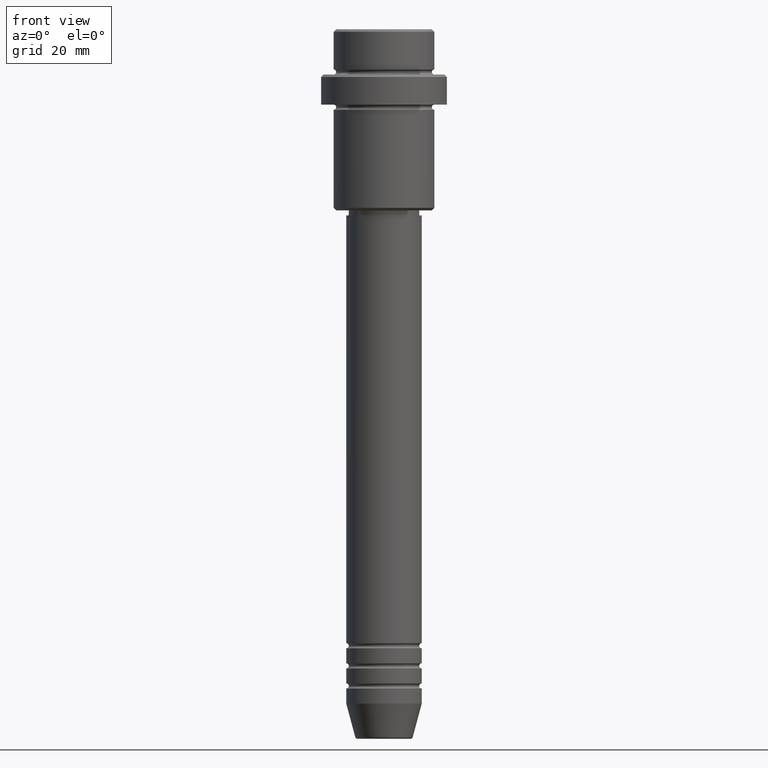
[diagram: clean part render]
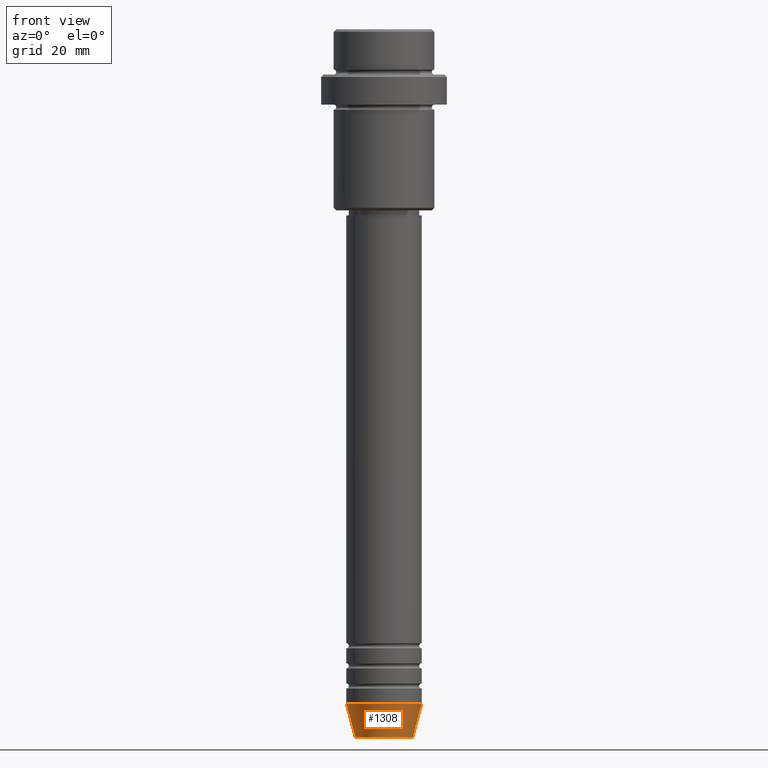
[diagram: same view with one face highlighted and labeled with its STEP entity id]
A machine part, front view. The second image highlights one B-rep face of the part: STEP entity #1308.
In plain terms, the highlighted conical surface has half-angle 15 deg.
Its self-contained STEP definition (entity closure, byte-faithful):
#41 = EDGE_CURVE ( 'NONE', #1173, #1194, #1111, .T. ) ;
#50 = CARTESIAN_POINT ( 'NONE',  ( 0.000000000000000000, 0.000000000000000000, -133.9999999999999716 ) ) ;
#66 = CARTESIAN_POINT ( 'NONE',  ( -5.723655072137191269, 8.097153428560735915E-16, -140.6294095225512422 ) ) ;
#102 = CARTESIAN_POINT ( 'NONE',  ( -7.500000000000000000, 9.184850993605147944E-16, -133.9999999999999716 ) ) ;
#145 = DIRECTION ( 'NONE',  ( 0.2588190451025213501, 0.000000000000000000, 0.9659258262890680902 ) ) ;
#160 = CARTESIAN_POINT ( 'NONE',  ( 7.500000000000000000, 0.000000000000000000, -133.9999999999999716 ) ) ;
#228 = DIRECTION ( 'NONE',  ( -0.2588190451025213501, 3.169619151431772337E-17, 0.9659258262890680902 ) ) ;
#274 = VERTEX_POINT ( 'NONE', #609 ) ;
#320 = LINE ( 'NONE', #102, #1315 ) ;
#460 = DIRECTION ( 'NONE',  ( -0.000000000000000000, -0.000000000000000000, 1.000000000000000000 ) ) ;
#515 = EDGE_LOOP ( 'NONE', ( #529, #837, #932, #1278 ) ) ;
#529 = ORIENTED_EDGE ( 'NONE', *, *, #1401, .F. ) ;
#545 = AXIS2_PLACEMENT_3D ( 'NONE', #920, #460, #1007 ) ;
#563 = VERTEX_POINT ( 'NONE', #623 ) ;
#580 = LINE ( 'NONE', #160, #1066 ) ;
#609 = CARTESIAN_POINT ( 'NONE',  ( 7.500000000000000000, 0.000000000000000000, -133.9999999999999716 ) ) ;
#623 = CARTESIAN_POINT ( 'NONE',  ( -7.500000000000000000, 9.184850993605147944E-16, -133.9999999999999716 ) ) ;
#771 = AXIS2_PLACEMENT_3D ( 'NONE', #1351, #922, #1242 ) ;
#822 = FACE_OUTER_BOUND ( 'NONE', #515, .T. ) ;
#837 = ORIENTED_EDGE ( 'NONE', *, *, #41, .T. ) ;
#900 = EDGE_CURVE ( 'NONE', #563, #274, #1382, .T. ) ;
#918 = DIRECTION ( 'NONE',  ( 1.000000000000000000, 0.000000000000000000, 0.000000000000000000 ) ) ;
#920 = CARTESIAN_POINT ( 'NONE',  ( 0.000000000000000000, 0.000000000000000000, -140.6294095225512422 ) ) ;
#922 = DIRECTION ( 'NONE',  ( -0.000000000000000000, -0.000000000000000000, 1.000000000000000000 ) ) ;
#932 = ORIENTED_EDGE ( 'NONE', *, *, #950, .T. ) ;
#950 = EDGE_CURVE ( 'NONE', #1194, #274, #580, .T. ) ;
#1007 = DIRECTION ( 'NONE',  ( 1.000000000000000000, 0.000000000000000000, 0.000000000000000000 ) ) ;
#1041 = CONICAL_SURFACE ( 'NONE', #1335, 7.500000000000000000, 0.2617993877991500740 ) ;
#1066 = VECTOR ( 'NONE', #145, 1000.000000000000000 ) ;
#1111 = CIRCLE ( 'NONE', #545, 5.723655072137191269 ) ;
#1173 = VERTEX_POINT ( 'NONE', #66 ) ;
#1194 = VERTEX_POINT ( 'NONE', #1295 ) ;
#1242 = DIRECTION ( 'NONE',  ( 1.000000000000000000, 0.000000000000000000, 0.000000000000000000 ) ) ;
#1278 = ORIENTED_EDGE ( 'NONE', *, *, #900, .F. ) ;
#1295 = CARTESIAN_POINT ( 'NONE',  ( 5.723655072137191269, 0.000000000000000000, -140.6294095225512422 ) ) ;
#1308 = ADVANCED_FACE ( 'NONE', ( #822 ), #1041, .T. ) ;
#1315 = VECTOR ( 'NONE', #228, 1000.000000000000000 ) ;
#1335 = AXIS2_PLACEMENT_3D ( 'NONE', #50, #1357, #918 ) ;
#1351 = CARTESIAN_POINT ( 'NONE',  ( 0.000000000000000000, 0.000000000000000000, -133.9999999999999716 ) ) ;
#1357 = DIRECTION ( 'NONE',  ( -0.000000000000000000, -0.000000000000000000, 1.000000000000000000 ) ) ;
#1382 = CIRCLE ( 'NONE', #771, 7.500000000000000000 ) ;
#1401 = EDGE_CURVE ( 'NONE', #1173, #563, #320, .T. ) ;